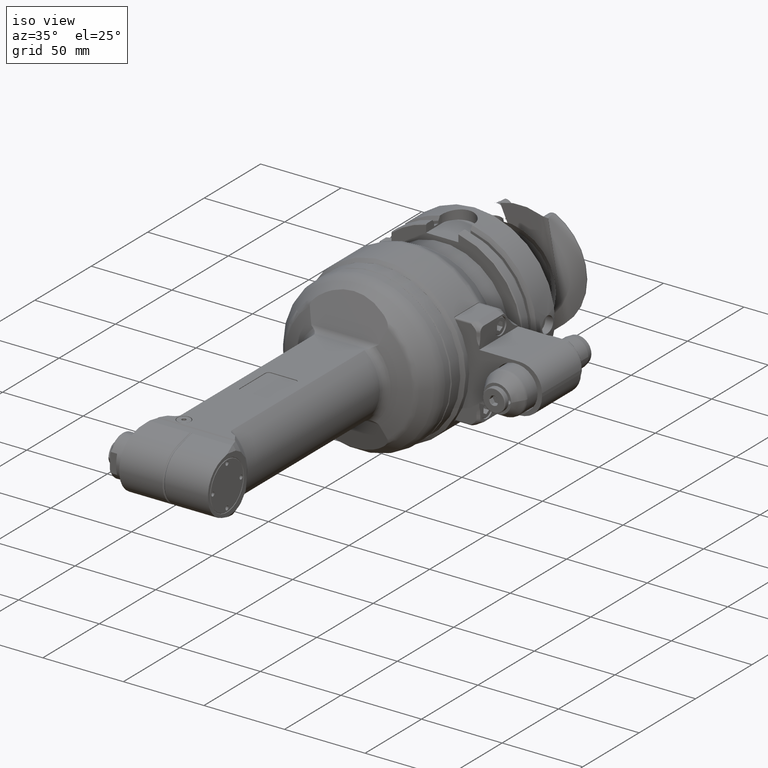
[diagram: clean part render]
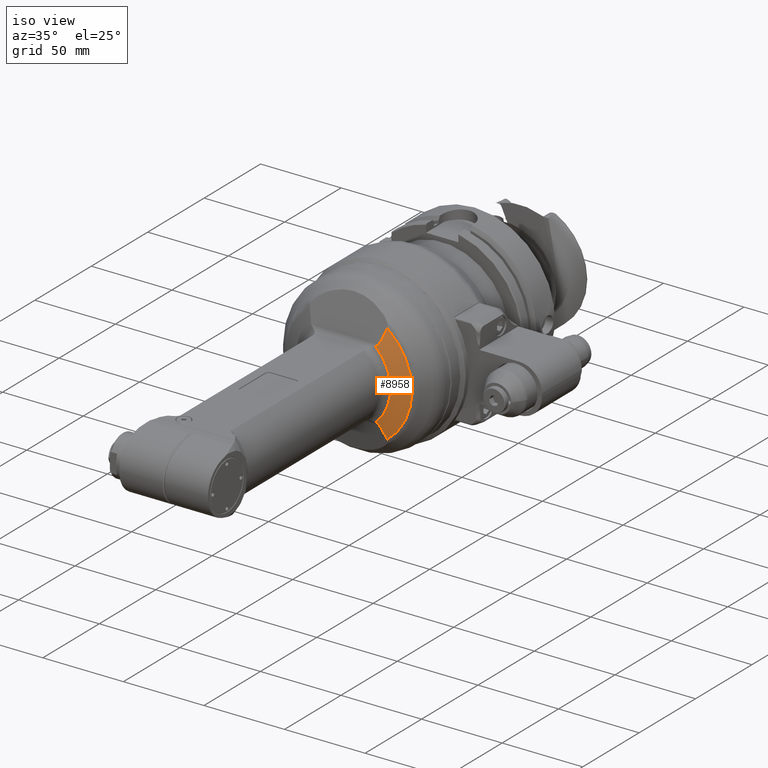
[diagram: same view with one face highlighted and labeled with its STEP entity id]
A machine part, iso view. The second image highlights one B-rep face of the part: STEP entity #8958.
In plain terms, the highlighted conical surface has half-angle 70 deg.
Its self-contained STEP definition (entity closure, byte-faithful):
#13=ELLIPSE('',#9917,569.256083803983,60.8434279727302);
#14=ELLIPSE('',#9918,693.585018456433,68.2308337840629);
#639=CONICAL_SURFACE('',#9915,34.0374473137,1.22173047639603);
#1043=FACE_OUTER_BOUND('',#1623,.T.);
#1623=EDGE_LOOP('',(#7704,#7705,#7706,#7707,#7708,#7709));
#2111=CIRCLE('',#9914,28.78989928337);
#2112=CIRCLE('',#9916,39.28499534403);
#2379=B_SPLINE_CURVE_WITH_KNOTS('',3,(#57134,#57135,#57136,#57137,#57138,
#57139,#57140,#57141,#57142,#57143),.UNSPECIFIED.,.F.,.F.,(4,2,2,2,4),(3.87833700389946,
3.91329063383634,4.04567845546663,4.09291708111332,4.09629230434172),
 .UNSPECIFIED.);
#2380=B_SPLINE_CURVE_WITH_KNOTS('',3,(#57145,#57146,#57147,#57148,#57149,
#57150,#57151,#57152,#57153,#57154,#57155),.UNSPECIFIED.,.F.,.F.,(4,2,3,
2,4),(8.34760123123962,8.35097645446802,8.3982150801147,8.530602901745,
8.56555653166954),.UNSPECIFIED.);
#4245=VERTEX_POINT('',#57109);
#4246=VERTEX_POINT('',#57110);
#4247=VERTEX_POINT('',#57129);
#4248=VERTEX_POINT('',#57130);
#4249=VERTEX_POINT('',#57132);
#4250=VERTEX_POINT('',#57144);
#5440=EDGE_CURVE('',#4245,#4246,#2111,.T.);
#5443=EDGE_CURVE('',#4247,#4248,#2112,.T.);
#5444=EDGE_CURVE('',#4249,#4247,#13,.T.);
#5445=EDGE_CURVE('',#4246,#4249,#2379,.T.);
#5446=EDGE_CURVE('',#4250,#4245,#2380,.T.);
#5447=EDGE_CURVE('',#4248,#4250,#14,.T.);
#7704=ORIENTED_EDGE('',*,*,#5443,.F.);
#7705=ORIENTED_EDGE('',*,*,#5444,.F.);
#7706=ORIENTED_EDGE('',*,*,#5445,.F.);
#7707=ORIENTED_EDGE('',*,*,#5440,.F.);
#7708=ORIENTED_EDGE('',*,*,#5446,.F.);
#7709=ORIENTED_EDGE('',*,*,#5447,.F.);
#8958=ADVANCED_FACE('',(#1043),#639,.T.);
#9914=AXIS2_PLACEMENT_3D('',#57111,#12036,#12037);
#9915=AXIS2_PLACEMENT_3D('',#57128,#12038,#12039);
#9916=AXIS2_PLACEMENT_3D('',#57131,#12040,#12041);
#9917=AXIS2_PLACEMENT_3D('',#57133,#12042,#12043);
#9918=AXIS2_PLACEMENT_3D('',#57156,#12044,#12045);
#12036=DIRECTION('center_axis',(1.,0.,0.));
#12037=DIRECTION('ref_axis',(0.,0.670777707074111,-0.741658457574912));
#12038=DIRECTION('center_axis',(-1.,0.,0.));
#12039=DIRECTION('ref_axis',(0.,1.,6.52353870366944E-17));
#12040=DIRECTION('center_axis',(-1.,0.,0.));
#12041=DIRECTION('ref_axis',(0.,0.83292124071012,-0.553391549243313));
#12042=DIRECTION('center_axis',(0.939692620783826,-1.63797758659003E-11,
0.342020143331389));
#12043=DIRECTION('ref_axis',(0.341774650843501,-0.0378817744105159,-0.939018135718535));
#12044=DIRECTION('center_axis',(0.939692620783227,-2.14812033086049E-11,
-0.342020143333036));
#12045=DIRECTION('ref_axis',(0.341851831337016,-0.0313684639697168,0.93923018737672));
#57109=CARTESIAN_POINT('',(63.80257437344,19.31162262831,-21.35227229628));
#57110=CARTESIAN_POINT('',(63.80257437349,19.31162262819,21.35227229624));
#57111=CARTESIAN_POINT('Origin',(63.80257437349,0.,0.));
#57128=CARTESIAN_POINT('Origin',(61.89262308756,0.,0.));
#57129=CARTESIAN_POINT('',(59.98267180163,24.08284234942,31.03751864366));
#57130=CARTESIAN_POINT('',(59.98267180163,24.08284234942,-31.03751864366));
#57131=CARTESIAN_POINT('Origin',(59.98267180164,0.,0.));
#57132=CARTESIAN_POINT('',(63.04205971779,21.00793488749,22.63191942667));
#57133=CARTESIAN_POINT('Origin',(-122.102103019513,22.5832687702142,531.311325881683));
#57134=CARTESIAN_POINT('Ctrl Pts',(63.8025743734836,19.3116226281867,21.3522722962427));
#57135=CARTESIAN_POINT('Ctrl Pts',(63.7628338104841,19.424641250827,21.3972740441301));
#57136=CARTESIAN_POINT('Ctrl Pts',(63.722160943066,19.5376366136089,21.4455372872791));
#57137=CARTESIAN_POINT('Ctrl Pts',(63.5449415360855,20.0185607988337,21.6656541829804));
#57138=CARTESIAN_POINT('Ctrl Pts',(63.3709980176082,20.4526549743606,21.9141103445253));
#57139=CARTESIAN_POINT('Ctrl Pts',(63.166211806799,20.8365530976218,22.3254401129465));
#57140=CARTESIAN_POINT('Ctrl Pts',(63.1074397236436,20.9329210767781,22.4564294756943));
#57141=CARTESIAN_POINT('Ctrl Pts',(63.0496872829004,20.999560522711,22.6110982568278));
#57142=CARTESIAN_POINT('Ctrl Pts',(63.0458599260058,21.0038358748213,22.6214784403979));
#57143=CARTESIAN_POINT('Ctrl Pts',(63.0420597177855,21.0079348874798,22.6319194266723));
#57144=CARTESIAN_POINT('',(63.04205971779,21.00793488749,-22.63191942667));
#57145=CARTESIAN_POINT('Ctrl Pts',(63.0420597177855,21.0079348874798,-22.6319194266723));
#57146=CARTESIAN_POINT('Ctrl Pts',(63.0458599260058,21.0038358748213,-22.6214784403979));
#57147=CARTESIAN_POINT('Ctrl Pts',(63.0496872829004,20.9995605227111,-22.6110982568278));
#57148=CARTESIAN_POINT('Ctrl Pts',(63.1074397236436,20.9329210767782,-22.4564294756943));
#57149=CARTESIAN_POINT('Ctrl Pts',(63.166211806799,20.8365530976218,-22.3254401129465));
#57150=CARTESIAN_POINT('Ctrl Pts',(63.2200670118463,20.735594580621,-22.2172675512645));
#57151=CARTESIAN_POINT('Ctrl Pts',(63.3709980176082,20.4526549743606,-21.9141103445253));
#57152=CARTESIAN_POINT('Ctrl Pts',(63.5449415360855,20.0185607988337,-21.6656541829804));
#57153=CARTESIAN_POINT('Ctrl Pts',(63.722160943053,19.5376366136444,-21.4455372872953));
#57154=CARTESIAN_POINT('Ctrl Pts',(63.7628338104554,19.4246412509068,-21.3972740441641));
#57155=CARTESIAN_POINT('Ctrl Pts',(63.8025743734415,19.3116226283064,-21.3522722962904));
#57156=CARTESIAN_POINT('Origin',(-164.590042490463,22.5909569304436,-648.045980171675));